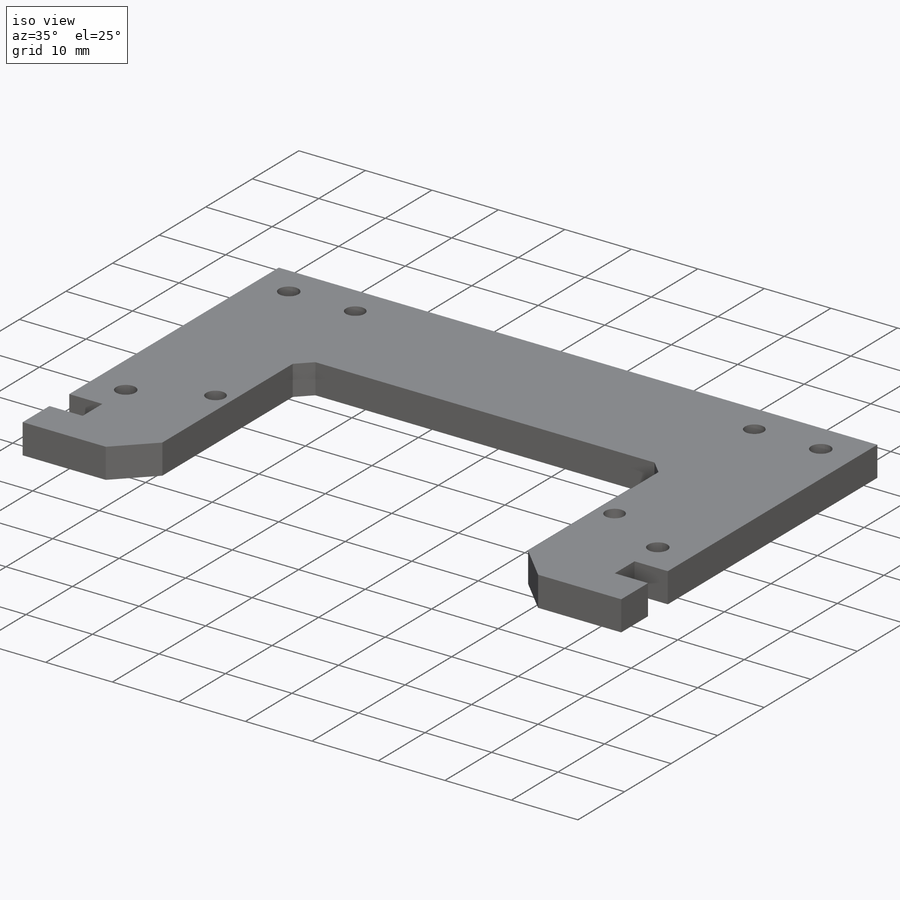
[diagram: iso view]
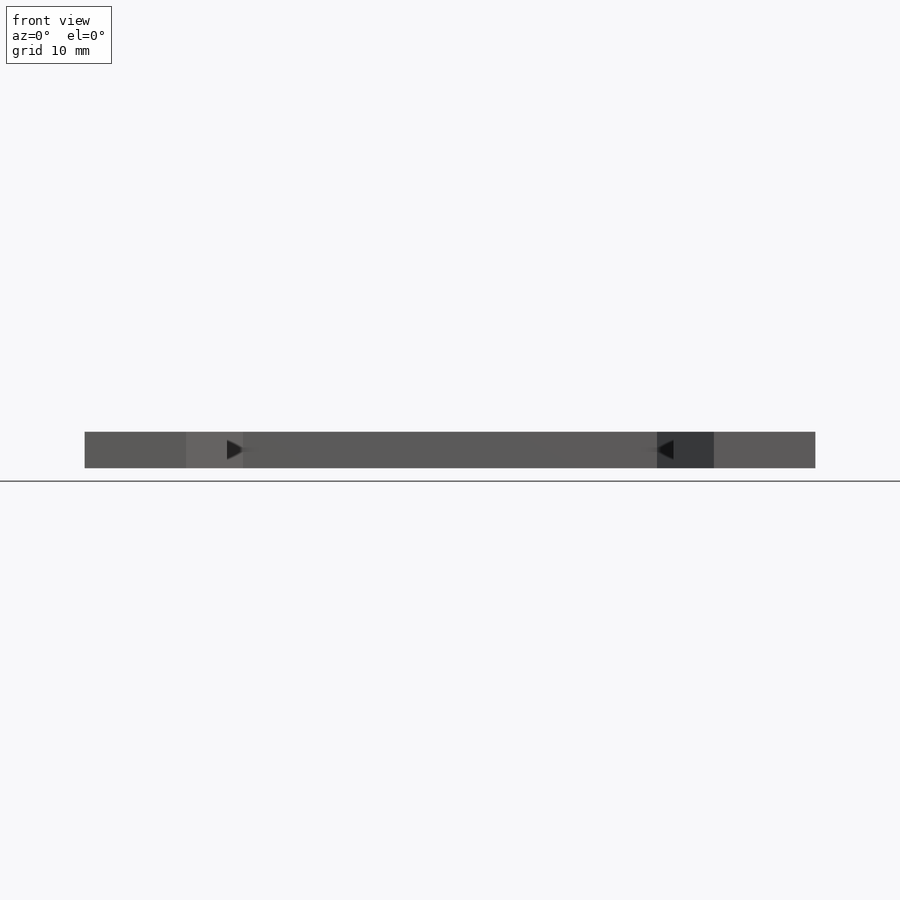
[diagram: front view]
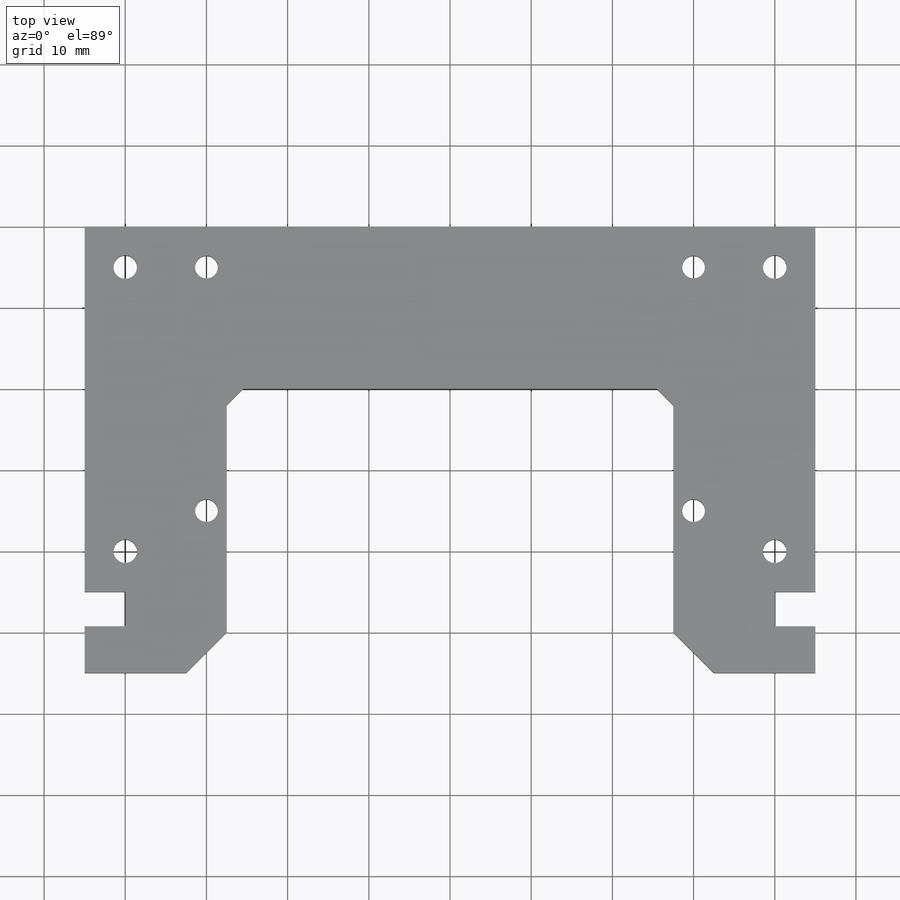
[diagram: top view]
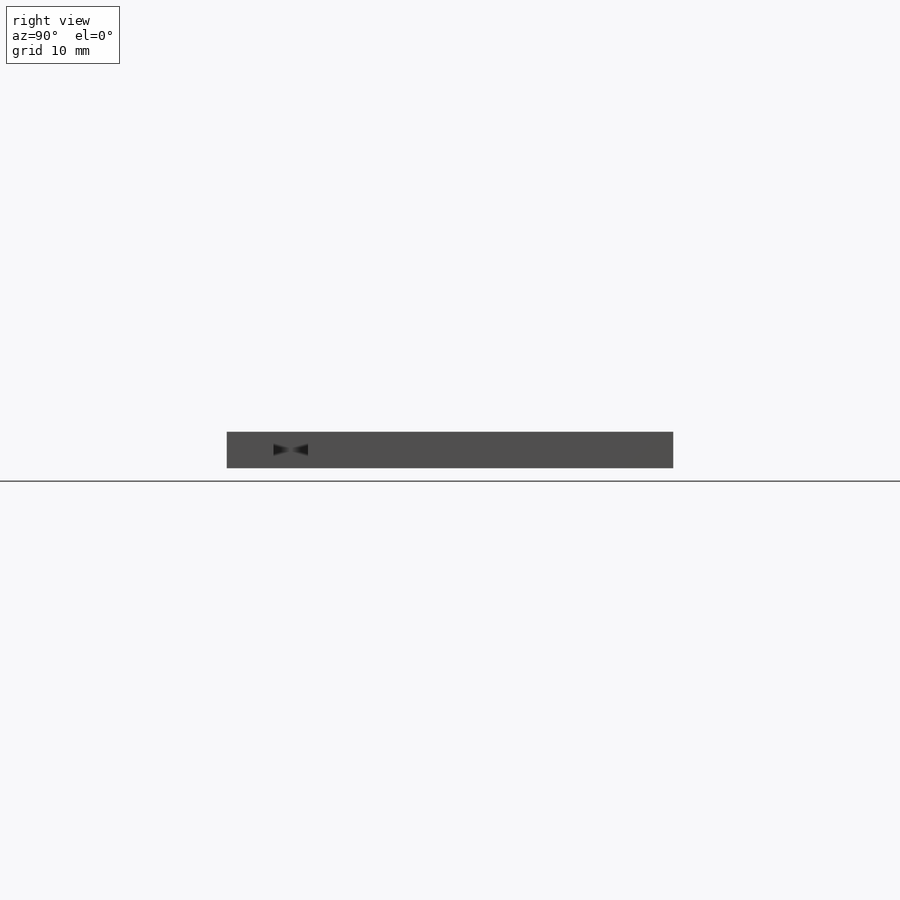
[diagram: right view]
SOLIDWORKS PART (.sldprt)
format: sldprt  version: not decoded by parser v0  size: 212,480 bytes
history: native  units: mm
features: sketch x4, cut_extrude x3, chamfer x2, material x1, extrude x1, mirror x1 (+16 scaffold rows collapsed)
feature tree (28):
  scaffold x16  (default folders/planes/origin — collapsed)
  material  "Material <not specified>"
  sketch  "Sketch1"  dims[c1.D3=~4.015071mm c1.D5=2.9mm c1.D1=90.0mm c1.D2=55.0mm c2.D3=5.0mm c2.D4=15.0mm c2.D6=5.0mm c2.D7=5.0mm]
  extrude  "Boss-Extrude1"  Depth=4.5mm
  sketch  "Sketch2"  dims[c1.D1=9.525mm c1.D2=25.0mm c2.D1=55.0mm c2.D2=20.0mm]
  cut_extrude  "Cut-Extrude1"  [1 undecoded]
  sketch  "Sketch3"  dims[D1=4.25mm D2=5.0mm D3=45.0mm]
  cut_extrude  "Cut-Extrude2"  [1 undecoded]
  sketch  "Sketch4"  dims[D1=2.8mm D2=30.0mm D3=30.0mm]
  cut_extrude  "Cut-Extrude3"  [1 undecoded]
  mirror  "Mirror1"
  chamfer  "Chamfer1"  Distance=5mm Angle=45deg
  chamfer  "Chamfer2"  Distance=2mm Angle=45deg
decode coverage: 7 of 11 modeling features carry decoded parameters
note: ~ marks probable driven/reference dimensions
note: 3 parameter values undecoded
summary: no parameter record found for 3 features
note: suppression state not decoded; provenance and decode notes live in map.json
